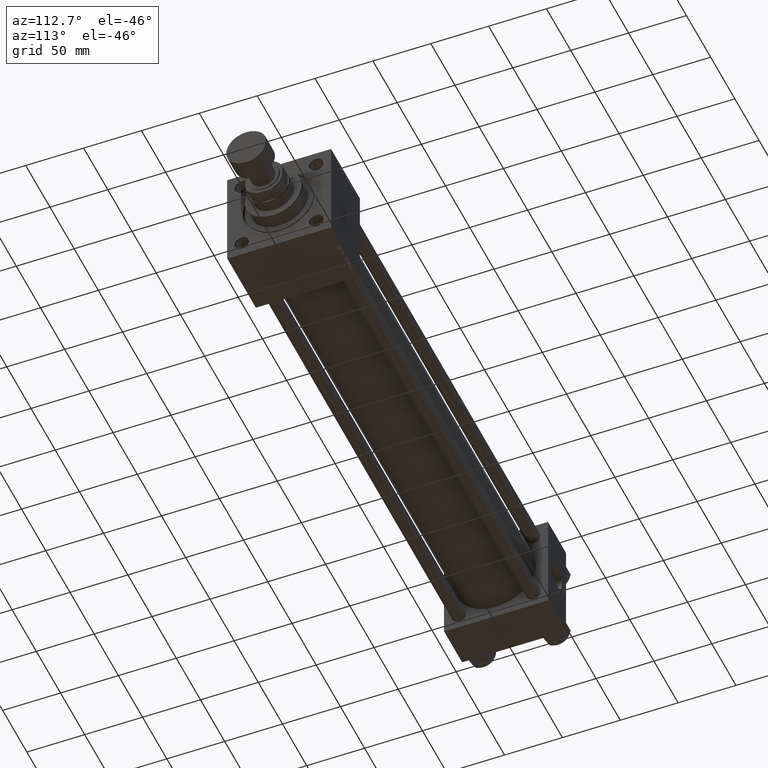
[diagram: clean part render]
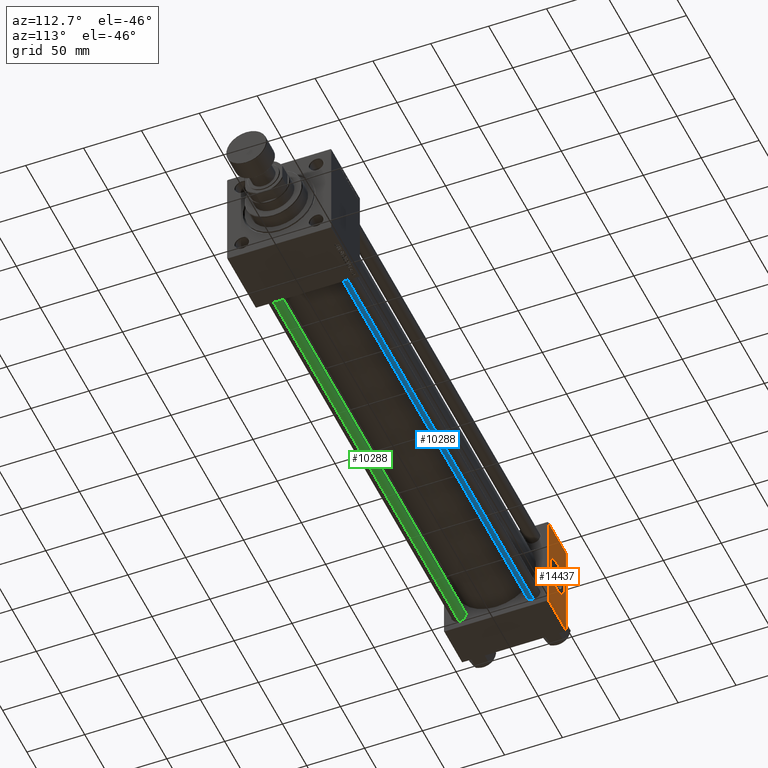
[diagram: same view with three faces highlighted in distinct colors, each labeled with its STEP entity id]
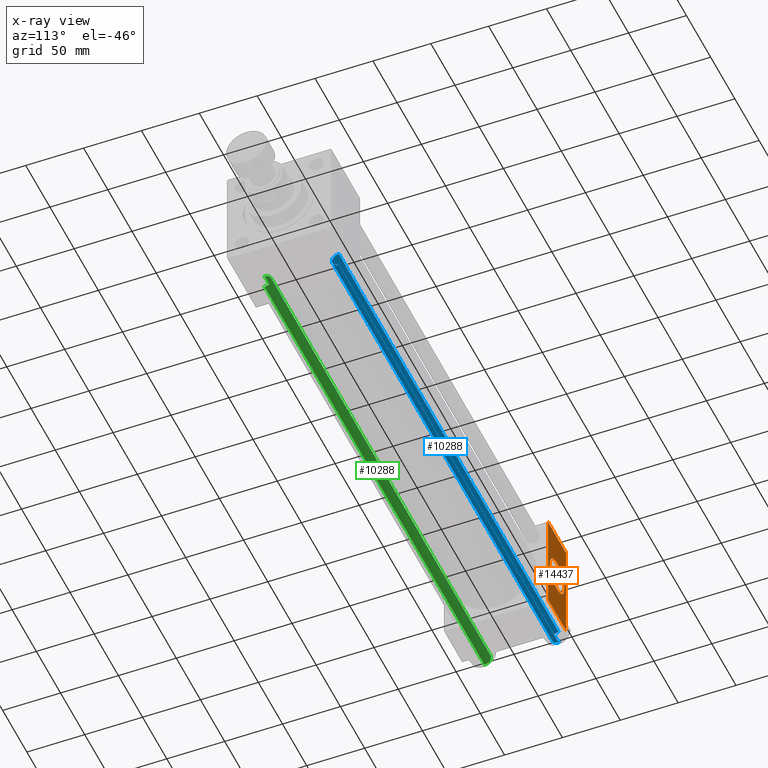
[diagram: x-ray of the same camera — body ghosted, the three highlighted faces saturated]
A machine part, auxiliary view with three faces highlighted in distinct colors.
The next image is the same camera in x-ray (body ghosted, the three faces saturated) — at least one of them is partly hidden behind the body in this view.
Their STEP definitions:

[orange] entity #14437 — the highlighted planar face has unit normal (0, 1, 0).
#402 = DIRECTION ( 'NONE',  ( -1.000000000000000000, 0.000000000000000000, 0.000000000000000000 ) ) ;
#2722 = ORIENTED_EDGE ( 'NONE', *, *, #17539, .F. ) ;
#3290 = VECTOR ( 'NONE', #38498, 1000.000000000000000 ) ;
#4121 = EDGE_CURVE ( 'NONE', #50151, #36720, #35421, .T. ) ;
#5159 = DIRECTION ( 'NONE',  ( 0.000000000000000000, 0.000000000000000000, 1.000000000000000000 ) ) ;
#7281 = LINE ( 'NONE', #33926, #12810 ) ;
#7846 = FACE_BOUND ( 'NONE', #11182, .T. ) ;
#8090 = LINE ( 'NONE', #30631, #49536 ) ;
#8489 = ORIENTED_EDGE ( 'NONE', *, *, #4121, .F. ) ;
#8675 = EDGE_LOOP ( 'NONE', ( #40555, #27691, #2722, #26600 ) ) ;
#11182 = EDGE_LOOP ( 'NONE', ( #8489, #24740 ) ) ;
#11364 = VECTOR ( 'NONE', #12704, 1000.000000000000000 ) ;
#11851 = CARTESIAN_POINT ( 'NONE',  ( 37.00000000000000000, 45.00000000000000000, 45.00000000000000711 ) ) ;
#12704 = DIRECTION ( 'NONE',  ( 1.000000000000000000, 0.000000000000000000, 0.000000000000000000 ) ) ;
#12810 = VECTOR ( 'NONE', #45711, 1000.000000000000000 ) ;
#13508 = CIRCLE ( 'NONE', #39631, 15.00000000000000178 ) ;
#13957 = DIRECTION ( 'NONE',  ( 0.000000000000000000, 1.000000000000000000, 0.000000000000000000 ) ) ;
#14437 = ADVANCED_FACE ( 'NONE', ( #7846, #27290 ), #23453, .T. ) ;
#15110 = VERTEX_POINT ( 'NONE', #35001 ) ;
#15918 = DIRECTION ( 'NONE',  ( 0.000000000000000000, 1.000000000000000000, 0.000000000000000000 ) ) ;
#15998 = AXIS2_PLACEMENT_3D ( 'NONE', #31393, #39087, #47284 ) ;
#17539 = EDGE_CURVE ( 'NONE', #18013, #15110, #7281, .T. ) ;
#17788 = CARTESIAN_POINT ( 'NONE',  ( 18.50000000000000000, 45.00000000000000000, 0.000000000000000000 ) ) ;
#18013 = VERTEX_POINT ( 'NONE', #31771 ) ;
#22565 = EDGE_CURVE ( 'NONE', #36720, #50151, #13508, .T. ) ;
#23320 = EDGE_CURVE ( 'NONE', #28923, #15110, #8090, .T. ) ;
#23453 = PLANE ( 'NONE',  #15998 ) ;
#24221 = LINE ( 'NONE', #24731, #11364 ) ;
#24731 = CARTESIAN_POINT ( 'NONE',  ( 37.00000000000000000, 45.00000000000000000, 44.49999999999999289 ) ) ;
#24740 = ORIENTED_EDGE ( 'NONE', *, *, #22565, .F. ) ;
#26600 = ORIENTED_EDGE ( 'NONE', *, *, #40906, .T. ) ;
#27160 = VERTEX_POINT ( 'NONE', #32291 ) ;
#27290 = FACE_OUTER_BOUND ( 'NONE', #8675, .T. ) ;
#27691 = ORIENTED_EDGE ( 'NONE', *, *, #23320, .T. ) ;
#28446 = CARTESIAN_POINT ( 'NONE',  ( 18.50000000000000000, 45.00000000000000000, 0.000000000000000000 ) ) ;
#28923 = VERTEX_POINT ( 'NONE', #40562 ) ;
#29556 = DIRECTION ( 'NONE',  ( 0.000000000000000000, 0.000000000000000000, 1.000000000000000000 ) ) ;
#30631 = CARTESIAN_POINT ( 'NONE',  ( 37.00000000000000000, 45.00000000000000000, -44.49999999999999289 ) ) ;
#31309 = LINE ( 'NONE', #11851, #3290 ) ;
#31393 = CARTESIAN_POINT ( 'NONE',  ( 37.00000000000000000, 45.00000000000000000, 45.00000000000000711 ) ) ;
#31771 = CARTESIAN_POINT ( 'NONE',  ( 0.000000000000000000, 45.00000000000000000, 44.49999999999999289 ) ) ;
#32291 = CARTESIAN_POINT ( 'NONE',  ( 37.00000000000000000, 45.00000000000000000, 44.49999999999999289 ) ) ;
#32969 = CARTESIAN_POINT ( 'NONE',  ( 18.50000000000000000, 45.00000000000000000, 15.00000000000000178 ) ) ;
#33926 = CARTESIAN_POINT ( 'NONE',  ( 0.000000000000000000, 45.00000000000000000, 45.00000000000000711 ) ) ;
#34074 = CARTESIAN_POINT ( 'NONE',  ( 18.50000000000000355, 45.00000000000000000, -15.00000000000000178 ) ) ;
#35001 = CARTESIAN_POINT ( 'NONE',  ( 0.000000000000000000, 45.00000000000000000, -44.49999999999996447 ) ) ;
#35421 = CIRCLE ( 'NONE', #41966, 15.00000000000000178 ) ;
#36720 = VERTEX_POINT ( 'NONE', #34074 ) ;
#38498 = DIRECTION ( 'NONE',  ( 0.000000000000000000, 0.000000000000000000, -1.000000000000000000 ) ) ;
#39087 = DIRECTION ( 'NONE',  ( -0.000000000000000000, 1.000000000000000000, 0.000000000000000000 ) ) ;
#39631 = AXIS2_PLACEMENT_3D ( 'NONE', #17788, #13957, #29556 ) ;
#40555 = ORIENTED_EDGE ( 'NONE', *, *, #42828, .T. ) ;
#40562 = CARTESIAN_POINT ( 'NONE',  ( 37.00000000000000000, 45.00000000000000000, -44.49999999999996447 ) ) ;
#40906 = EDGE_CURVE ( 'NONE', #18013, #27160, #24221, .T. ) ;
#41966 = AXIS2_PLACEMENT_3D ( 'NONE', #28446, #15918, #5159 ) ;
#42828 = EDGE_CURVE ( 'NONE', #27160, #28923, #31309, .T. ) ;
#45711 = DIRECTION ( 'NONE',  ( 0.000000000000000000, 0.000000000000000000, -1.000000000000000000 ) ) ;
#47284 = DIRECTION ( 'NONE',  ( 0.000000000000000000, -0.000000000000000000, 1.000000000000000000 ) ) ;
#49536 = VECTOR ( 'NONE', #402, 1000.000000000000000 ) ;
#50151 = VERTEX_POINT ( 'NONE', #32969 ) ;

[blue] entity #10288 — the highlighted cylindrical surface (edge-blend (fillet) strip) has radius 6 mm, axis along (1, -0, -0).
#2804 = AXIS2_PLACEMENT_3D ( 'NONE', #46323, #15072, #30674 ) ;
#3889 = ORIENTED_EDGE ( 'NONE', *, *, #31349, .T. ) ;
#4412 = AXIS2_PLACEMENT_3D ( 'NONE', #21966, #22221, #9441 ) ;
#7967 = LINE ( 'NONE', #46908, #24584 ) ;
#9441 = DIRECTION ( 'NONE',  ( -1.000000000000000000, 0.000000000000000000, 0.000000000000000000 ) ) ;
#10288 = ADVANCED_FACE ( 'NONE', ( #14288 ), #25541, .T. ) ;
#11223 = EDGE_CURVE ( 'NONE', #44910, #43445, #29784, .T. ) ;
#11507 = CIRCLE ( 'NONE', #22152, 6.000000000000000888 ) ;
#13945 = CARTESIAN_POINT ( 'NONE',  ( -6.000000000000000888, 0.000000000000000000, 454.5000000000002842 ) ) ;
#14288 = FACE_OUTER_BOUND ( 'NONE', #29366, .T. ) ;
#15072 = DIRECTION ( 'NONE',  ( 0.000000000000000000, 0.000000000000000000, -1.000000000000000000 ) ) ;
#17421 = LINE ( 'NONE', #33556, #36567 ) ;
#19491 = DIRECTION ( 'NONE',  ( -0.000000000000000000, -0.000000000000000000, -1.000000000000000000 ) ) ;
#21966 = CARTESIAN_POINT ( 'NONE',  ( 0.000000000000000000, 0.000000000000000000, 455.0000000000000000 ) ) ;
#22152 = AXIS2_PLACEMENT_3D ( 'NONE', #22577, #45894, #38201 ) ;
#22221 = DIRECTION ( 'NONE',  ( -0.000000000000000000, -0.000000000000000000, -1.000000000000000000 ) ) ;
#22577 = CARTESIAN_POINT ( 'NONE',  ( 0.000000000000000000, 0.000000000000000000, 0.5000000000002224887 ) ) ;
#24137 = CARTESIAN_POINT ( 'NONE',  ( -6.000000000000000888, 0.000000000000000000, 0.5000000000002224887 ) ) ;
#24584 = VECTOR ( 'NONE', #19491, 1000.000000000000000 ) ;
#25541 = CYLINDRICAL_SURFACE ( 'NONE', #4412, 6.000000000000000888 ) ;
#27363 = ORIENTED_EDGE ( 'NONE', *, *, #45413, .T. ) ;
#27666 = CARTESIAN_POINT ( 'NONE',  ( 6.000000000000000888, 7.347880794884119736E-16, 0.5000000000002224887 ) ) ;
#28099 = CARTESIAN_POINT ( 'NONE',  ( 6.000000000000000888, 7.347880794884119736E-16, 454.5000000000002842 ) ) ;
#29366 = EDGE_LOOP ( 'NONE', ( #31847, #33238, #3889, #27363 ) ) ;
#29784 = CIRCLE ( 'NONE', #2804, 6.000000000000000888 ) ;
#30674 = DIRECTION ( 'NONE',  ( 1.000000000000000000, 0.000000000000000000, 0.000000000000000000 ) ) ;
#31349 = EDGE_CURVE ( 'NONE', #43445, #46993, #17421, .T. ) ;
#31847 = ORIENTED_EDGE ( 'NONE', *, *, #45537, .F. ) ;
#33238 = ORIENTED_EDGE ( 'NONE', *, *, #11223, .T. ) ;
#33556 = CARTESIAN_POINT ( 'NONE',  ( -6.000000000000000888, 0.000000000000000000, 455.0000000000000000 ) ) ;
#36567 = VECTOR ( 'NONE', #44832, 1000.000000000000000 ) ;
#38201 = DIRECTION ( 'NONE',  ( 1.000000000000000000, 0.000000000000000000, 0.000000000000000000 ) ) ;
#43445 = VERTEX_POINT ( 'NONE', #13945 ) ;
#44832 = DIRECTION ( 'NONE',  ( -0.000000000000000000, -0.000000000000000000, -1.000000000000000000 ) ) ;
#44910 = VERTEX_POINT ( 'NONE', #28099 ) ;
#45413 = EDGE_CURVE ( 'NONE', #46993, #45587, #11507, .T. ) ;
#45537 = EDGE_CURVE ( 'NONE', #44910, #45587, #7967, .T. ) ;
#45587 = VERTEX_POINT ( 'NONE', #27666 ) ;
#45894 = DIRECTION ( 'NONE',  ( -0.000000000000000000, -0.000000000000000000, 1.000000000000000000 ) ) ;
#46323 = CARTESIAN_POINT ( 'NONE',  ( 0.000000000000000000, 0.000000000000000000, 454.5000000000002842 ) ) ;
#46908 = CARTESIAN_POINT ( 'NONE',  ( 6.000000000000000888, 7.347880794884119736E-16, 455.0000000000000000 ) ) ;
#46993 = VERTEX_POINT ( 'NONE', #24137 ) ;

[green] entity #10288 — the highlighted cylindrical surface (edge-blend (fillet) strip) has radius 6 mm, axis along (-1, 0, -0).
#2804 = AXIS2_PLACEMENT_3D ( 'NONE', #46323, #15072, #30674 ) ;
#3889 = ORIENTED_EDGE ( 'NONE', *, *, #31349, .T. ) ;
#4412 = AXIS2_PLACEMENT_3D ( 'NONE', #21966, #22221, #9441 ) ;
#7967 = LINE ( 'NONE', #46908, #24584 ) ;
#9441 = DIRECTION ( 'NONE',  ( -1.000000000000000000, 0.000000000000000000, 0.000000000000000000 ) ) ;
#10288 = ADVANCED_FACE ( 'NONE', ( #14288 ), #25541, .T. ) ;
#11223 = EDGE_CURVE ( 'NONE', #44910, #43445, #29784, .T. ) ;
#11507 = CIRCLE ( 'NONE', #22152, 6.000000000000000888 ) ;
#13945 = CARTESIAN_POINT ( 'NONE',  ( -6.000000000000000888, 0.000000000000000000, 454.5000000000002842 ) ) ;
#14288 = FACE_OUTER_BOUND ( 'NONE', #29366, .T. ) ;
#15072 = DIRECTION ( 'NONE',  ( 0.000000000000000000, 0.000000000000000000, -1.000000000000000000 ) ) ;
#17421 = LINE ( 'NONE', #33556, #36567 ) ;
#19491 = DIRECTION ( 'NONE',  ( -0.000000000000000000, -0.000000000000000000, -1.000000000000000000 ) ) ;
#21966 = CARTESIAN_POINT ( 'NONE',  ( 0.000000000000000000, 0.000000000000000000, 455.0000000000000000 ) ) ;
#22152 = AXIS2_PLACEMENT_3D ( 'NONE', #22577, #45894, #38201 ) ;
#22221 = DIRECTION ( 'NONE',  ( -0.000000000000000000, -0.000000000000000000, -1.000000000000000000 ) ) ;
#22577 = CARTESIAN_POINT ( 'NONE',  ( 0.000000000000000000, 0.000000000000000000, 0.5000000000002224887 ) ) ;
#24137 = CARTESIAN_POINT ( 'NONE',  ( -6.000000000000000888, 0.000000000000000000, 0.5000000000002224887 ) ) ;
#24584 = VECTOR ( 'NONE', #19491, 1000.000000000000000 ) ;
#25541 = CYLINDRICAL_SURFACE ( 'NONE', #4412, 6.000000000000000888 ) ;
#27363 = ORIENTED_EDGE ( 'NONE', *, *, #45413, .T. ) ;
#27666 = CARTESIAN_POINT ( 'NONE',  ( 6.000000000000000888, 7.347880794884119736E-16, 0.5000000000002224887 ) ) ;
#28099 = CARTESIAN_POINT ( 'NONE',  ( 6.000000000000000888, 7.347880794884119736E-16, 454.5000000000002842 ) ) ;
#29366 = EDGE_LOOP ( 'NONE', ( #31847, #33238, #3889, #27363 ) ) ;
#29784 = CIRCLE ( 'NONE', #2804, 6.000000000000000888 ) ;
#30674 = DIRECTION ( 'NONE',  ( 1.000000000000000000, 0.000000000000000000, 0.000000000000000000 ) ) ;
#31349 = EDGE_CURVE ( 'NONE', #43445, #46993, #17421, .T. ) ;
#31847 = ORIENTED_EDGE ( 'NONE', *, *, #45537, .F. ) ;
#33238 = ORIENTED_EDGE ( 'NONE', *, *, #11223, .T. ) ;
#33556 = CARTESIAN_POINT ( 'NONE',  ( -6.000000000000000888, 0.000000000000000000, 455.0000000000000000 ) ) ;
#36567 = VECTOR ( 'NONE', #44832, 1000.000000000000000 ) ;
#38201 = DIRECTION ( 'NONE',  ( 1.000000000000000000, 0.000000000000000000, 0.000000000000000000 ) ) ;
#43445 = VERTEX_POINT ( 'NONE', #13945 ) ;
#44832 = DIRECTION ( 'NONE',  ( -0.000000000000000000, -0.000000000000000000, -1.000000000000000000 ) ) ;
#44910 = VERTEX_POINT ( 'NONE', #28099 ) ;
#45413 = EDGE_CURVE ( 'NONE', #46993, #45587, #11507, .T. ) ;
#45537 = EDGE_CURVE ( 'NONE', #44910, #45587, #7967, .T. ) ;
#45587 = VERTEX_POINT ( 'NONE', #27666 ) ;
#45894 = DIRECTION ( 'NONE',  ( -0.000000000000000000, -0.000000000000000000, 1.000000000000000000 ) ) ;
#46323 = CARTESIAN_POINT ( 'NONE',  ( 0.000000000000000000, 0.000000000000000000, 454.5000000000002842 ) ) ;
#46908 = CARTESIAN_POINT ( 'NONE',  ( 6.000000000000000888, 7.347880794884119736E-16, 455.0000000000000000 ) ) ;
#46993 = VERTEX_POINT ( 'NONE', #24137 ) ;